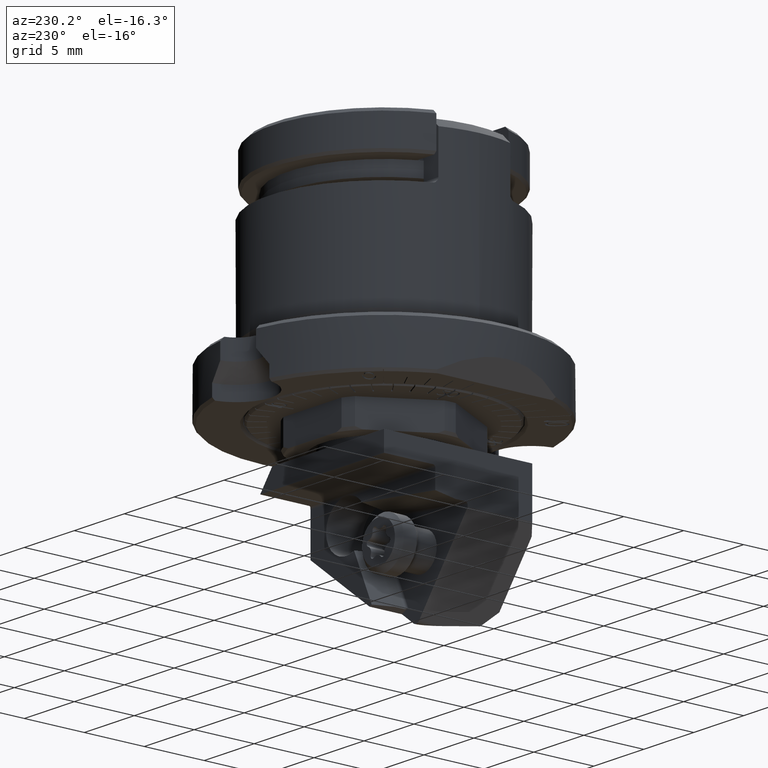
[diagram: clean part render]
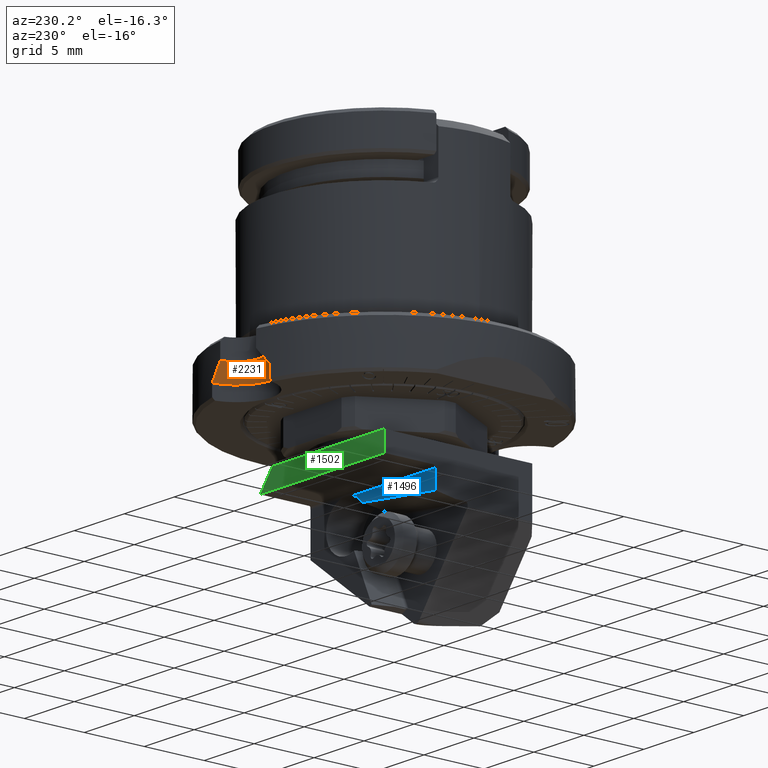
[diagram: same view with three faces highlighted in distinct colors, each labeled with its STEP entity id]
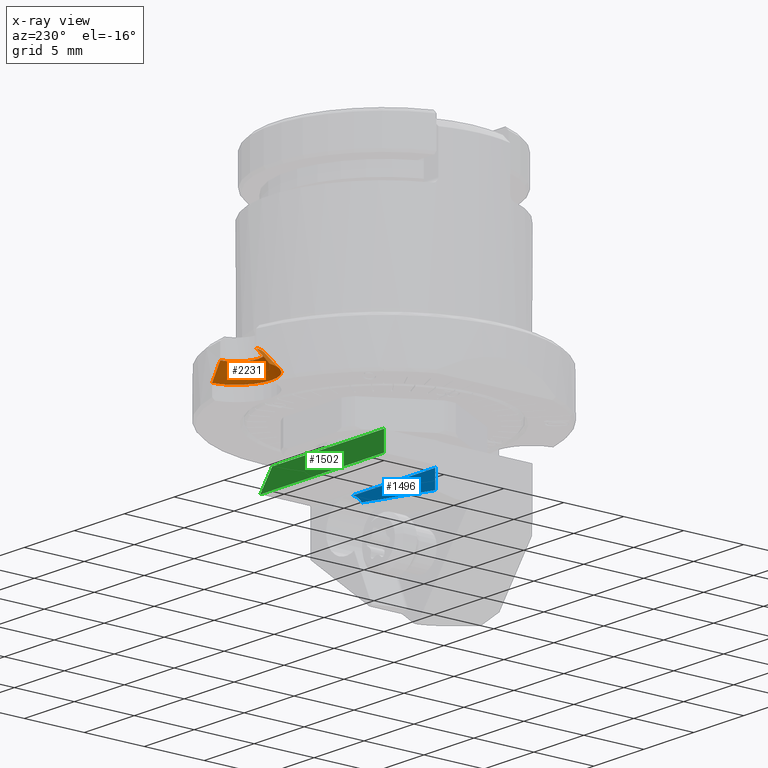
[diagram: x-ray of the same camera — body ghosted, the three highlighted faces saturated]
A machine part, auxiliary view with three faces highlighted in distinct colors.
The next image is the same camera in x-ray (body ghosted, the three faces saturated) — at least one of them is partly hidden behind the body in this view.
Their STEP definitions:

[orange] entity #2231 — the highlighted conical surface has half-angle 41 deg.
#247=CONICAL_SURFACE('',#19070,2.337499997509,41.);
#408=B_SPLINE_CURVE_WITH_KNOTS('',3,(#28671,#28672,#28673,#28674,#28675,
#28676),.UNSPECIFIED.,.F.,.F.,(4,1,1,4),(0.,0.3333333333333,0.6666666666667,
1.),.UNSPECIFIED.);
#438=B_SPLINE_CURVE_WITH_KNOTS('',3,(#29185,#29186,#29187,#29188,#29189,
#29190),.UNSPECIFIED.,.F.,.F.,(4,1,1,4),(0.,0.3333333333333,0.6666666666667,
1.),.UNSPECIFIED.);
#1282=FACE_OUTER_BOUND('',#3936,.T.);
#2231=ADVANCED_FACE('',(#1282),#247,.F.);
#3936=EDGE_LOOP('',(#8822,#8823,#8824,#8825,#8826,#8827));
#4558=CIRCLE('',#19065,1.8);
#4559=CIRCLE('',#19066,1.8);
#4560=CIRCLE('',#19068,2.875);
#4561=CIRCLE('',#19069,2.875);
#8822=ORIENTED_EDGE('',*,*,#13375,.F.);
#8823=ORIENTED_EDGE('',*,*,#13528,.F.);
#8824=ORIENTED_EDGE('',*,*,#13527,.F.);
#8825=ORIENTED_EDGE('',*,*,#13529,.F.);
#8826=ORIENTED_EDGE('',*,*,#13530,.F.);
#8827=ORIENTED_EDGE('',*,*,#13531,.F.);
#11046=VERTEX_POINT('',#28670);
#11047=VERTEX_POINT('',#28677);
#11140=VERTEX_POINT('',#29180);
#11141=VERTEX_POINT('',#29182);
#11142=VERTEX_POINT('',#29191);
#11143=VERTEX_POINT('',#29193);
#13375=EDGE_CURVE('',#11046,#11047,#408,.T.);
#13527=EDGE_CURVE('',#11140,#11141,#4558,.T.);
#13528=EDGE_CURVE('',#11141,#11046,#4559,.T.);
#13529=EDGE_CURVE('',#11142,#11140,#438,.T.);
#13530=EDGE_CURVE('',#11143,#11142,#4560,.T.);
#13531=EDGE_CURVE('',#11047,#11143,#4561,.T.);
#19065=AXIS2_PLACEMENT_3D('',#29181,#23387,#23388);
#19066=AXIS2_PLACEMENT_3D('',#29183,#23389,#23390);
#19068=AXIS2_PLACEMENT_3D('',#29192,#23393,#23394);
#19069=AXIS2_PLACEMENT_3D('',#29194,#23395,#23396);
#19070=AXIS2_PLACEMENT_3D('',#29195,#23397,#23398);
#23387=DIRECTION('',(0.,0.,-1.));
#23388=DIRECTION('',(0.997315059433986,-0.0732302685109489,0.));
#23389=DIRECTION('',(0.,0.,-1.));
#23390=DIRECTION('',(0.,-1.,0.));
#23393=DIRECTION('',(0.,0.,1.));
#23394=DIRECTION('',(0.,-1.,0.));
#23395=DIRECTION('',(0.,0.,1.));
#23396=DIRECTION('',(-0.993136035958763,-0.116965012204996,0.));
#23397=DIRECTION('',(0.,0.,-1.));
#23398=DIRECTION('',(0.,-1.,5.47310337640664E-18));
#28670=CARTESIAN_POINT('',(-1.795167108784,12.15818551641,-1.613353960688));
#28671=CARTESIAN_POINT('',(-1.795167108784,12.15818551641,-1.613353960688));
#28672=CARTESIAN_POINT('',(-1.913817152808,12.14066672986,-1.750954565813));
#28673=CARTESIAN_POINT('',(-2.150630243388,12.1021515681,-2.02603852394));
#28674=CARTESIAN_POINT('',(-2.504128385923,12.0339793501,-2.438272982593));
#28675=CARTESIAN_POINT('',(-2.738469845831,11.98162353626,-2.712809760363));
#28676=CARTESIAN_POINT('',(-2.855266103381,11.95372558991,-2.85));
#28677=CARTESIAN_POINT('',(-2.855266103382,11.95372558991,-2.85));
#29180=CARTESIAN_POINT('',(1.795167161952,12.15818602978,-1.613353982079));
#29181=CARTESIAN_POINT('',(0.,12.29,-1.613353962237));
#29182=CARTESIAN_POINT('',(0.,10.49,-1.613353962237));
#29183=CARTESIAN_POINT('',(0.,12.29,-1.613353962237));
#29185=CARTESIAN_POINT('',(2.855266060952,11.95372560005,-2.850000038144));
#29186=CARTESIAN_POINT('',(2.738461841281,11.98162544691,-2.712800446286));
#29187=CARTESIAN_POINT('',(2.504109954914,12.03398333514,-2.438250939651));
#29188=CARTESIAN_POINT('',(2.150611515753,12.10215457357,-2.026016483989));
#29189=CARTESIAN_POINT('',(1.913809109753,12.1406684387,-1.750945189179));
#29190=CARTESIAN_POINT('',(1.795167161952,12.15818602978,-1.613353982079));
#29191=CARTESIAN_POINT('',(2.855266103382,11.95372558991,-2.85));
#29192=CARTESIAN_POINT('',(0.,12.29,-2.85));
#29193=CARTESIAN_POINT('',(0.,9.415,-2.85));
#29194=CARTESIAN_POINT('',(0.,12.29,-2.85));
#29195=CARTESIAN_POINT('',(0.,12.29,-2.231676978252));

[blue] entity #1496 — the highlighted planar face has unit normal (0, 1, 0).
#572=FACE_OUTER_BOUND('',#3167,.T.);
#1496=ADVANCED_FACE('',(#572),#2417,.T.);
#2417=PLANE('',#17884);
#3167=EDGE_LOOP('',(#4727,#4728,#4729,#4730));
#4128=CIRCLE('',#17877,1.999999999999);
#4727=ORIENTED_EDGE('',*,*,#11421,.F.);
#4728=ORIENTED_EDGE('',*,*,#11404,.F.);
#4729=ORIENTED_EDGE('',*,*,#11415,.F.);
#4730=ORIENTED_EDGE('',*,*,#11422,.F.);
#9734=VERTEX_POINT('',#24288);
#9736=VERTEX_POINT('',#24291);
#9743=VERTEX_POINT('',#24346);
#9745=VERTEX_POINT('',#24363);
#11404=EDGE_CURVE('',#9734,#9736,#13925,.T.);
#11415=EDGE_CURVE('',#9743,#9734,#4128,.T.);
#11421=EDGE_CURVE('',#9736,#9745,#13933,.T.);
#11422=EDGE_CURVE('',#9745,#9743,#13934,.T.);
#13925=LINE('',#24290,#15768);
#13933=LINE('',#24362,#15776);
#13934=LINE('',#24364,#15777);
#15768=VECTOR('',#19481,1.);
#15776=VECTOR('',#19513,1.);
#15777=VECTOR('',#19514,1.);
#17877=AXIS2_PLACEMENT_3D('',#24347,#19496,#19497);
#17884=AXIS2_PLACEMENT_3D('',#24365,#19515,#19516);
#19481=DIRECTION('',(-1.,0.,2.01551313077E-13));
#19496=DIRECTION('',(0.,1.,0.));
#19497=DIRECTION('',(-0.798143155928903,0.,0.602467843659602));
#19513=DIRECTION('',(-2.617593411673E-14,-3.279428109511E-14,-1.));
#19514=DIRECTION('',(0.993832600975763,1.27514354743195E-14,0.110890762634896));
#19515=DIRECTION('',(0.,1.,0.));
#19516=DIRECTION('',(-0.592950517974966,0.,0.805238898236554));
#24288=CARTESIAN_POINT('',(2.24936328270915,0.72,-8.40000000000244));
#24290=CARTESIAN_POINT('',(2.249363282708,0.72,-8.400000000002));
#24291=CARTESIAN_POINT('',(-6.,0.72,-8.4));
#24346=CARTESIAN_POINT('',(1.33770492745386,0.719999999999991,-9.07423555582158));
#24347=CARTESIAN_POINT('',(2.933991239311,0.72,-10.27917124314));
#24362=CARTESIAN_POINT('',(-6.,0.72,-8.4));
#24363=CARTESIAN_POINT('',(-6.,0.72,-9.892968705244));
#24364=CARTESIAN_POINT('',(-6.,0.72,-9.892968705244));
#24365=CARTESIAN_POINT('',(-2.231042440979,0.72,-8.663403792861));

[green] entity #1502 — the highlighted planar face has unit normal (0, 1, 0).
#578=FACE_OUTER_BOUND('',#3173,.T.);
#1502=ADVANCED_FACE('',(#578),#2422,.T.);
#2422=PLANE('',#17891);
#3173=EDGE_LOOP('',(#4758,#4759,#4760,#4761));
#4758=ORIENTED_EDGE('',*,*,#11432,.F.);
#4759=ORIENTED_EDGE('',*,*,#11428,.F.);
#4760=ORIENTED_EDGE('',*,*,#11349,.F.);
#4761=ORIENTED_EDGE('',*,*,#11360,.F.);
#9691=VERTEX_POINT('',#24173);
#9692=VERTEX_POINT('',#24174);
#9702=VERTEX_POINT('',#24195);
#9749=VERTEX_POINT('',#24376);
#11349=EDGE_CURVE('',#9691,#9692,#13890,.T.);
#11360=EDGE_CURVE('',#9702,#9691,#13896,.T.);
#11428=EDGE_CURVE('',#9692,#9749,#13939,.T.);
#11432=EDGE_CURVE('',#9749,#9702,#13943,.T.);
#13890=LINE('',#24172,#15733);
#13896=LINE('',#24196,#15739);
#13939=LINE('',#24375,#15782);
#13943=LINE('',#24383,#15786);
#15733=VECTOR('',#19384,1.);
#15739=VECTOR('',#19402,1.);
#15782=VECTOR('',#19525,1.);
#15786=VECTOR('',#19535,1.);
#17891=AXIS2_PLACEMENT_3D('',#24385,#19538,#19539);
#19384=DIRECTION('',(-1.,0.,0.));
#19402=DIRECTION('',(-0.599954886066185,0.,0.80003383346288));
#19525=DIRECTION('',(0.,0.,-1.));
#19535=DIRECTION('',(1.,0.,0.));
#19538=DIRECTION('',(0.,1.,0.));
#19539=DIRECTION('',(-0.800033833462712,0.,-0.599954886066409));
#24172=CARTESIAN_POINT('',(5.19202890989,5.,-6.6));
#24173=CARTESIAN_POINT('',(5.19202890989,5.,-6.6));
#24174=CARTESIAN_POINT('',(-6.,5.,-6.6));
#24195=CARTESIAN_POINT('',(6.39188793779,5.,-8.2));
#24196=CARTESIAN_POINT('',(6.39188793779,5.,-8.2));
#24375=CARTESIAN_POINT('',(-6.,5.,-6.6));
#24376=CARTESIAN_POINT('',(-6.,5.,-8.2));
#24383=CARTESIAN_POINT('',(-6.,5.,-8.2));
#24385=CARTESIAN_POINT('',(-0.1880433970283,5.,-7.687956692252));